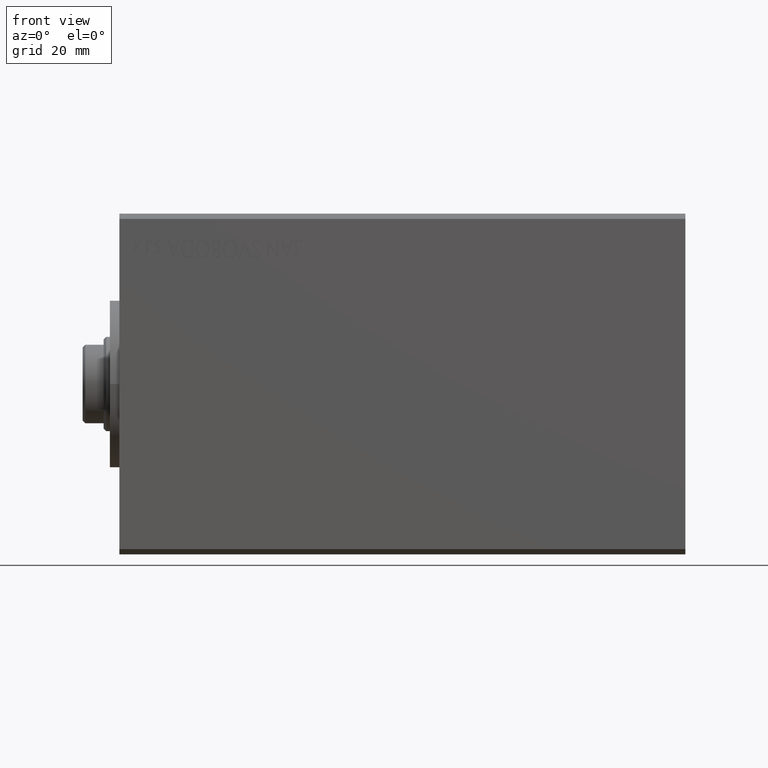
[diagram: clean part render]
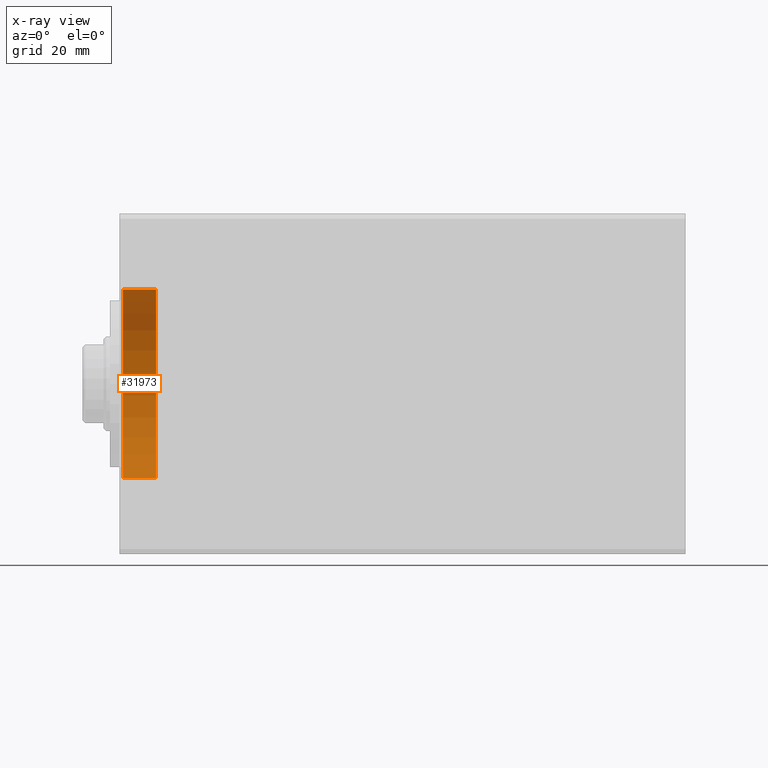
[diagram: x-ray — body ghosted, one internal face saturated and labeled with its STEP entity id]
A machine part, front view, then the same camera in x-ray: the body is ghosted and one INTERNAL B-rep face — a face not visible from any outside direction — is saturated and labeled: STEP entity #31973.
In plain terms, the highlighted cylindrical surface (partial cylindrical patch) has radius 18 mm, axis along (-1, -0, -0).
Its self-contained STEP definition (entity closure, byte-faithful):
#972 = DIRECTION ( 'NONE',  ( -1.000000000000000000, -0.000000000000000000, -0.000000000000000000 ) ) ;
#1537 = CIRCLE ( 'NONE', #29329, 18.00000000000000000 ) ;
#2819 = DIRECTION ( 'NONE',  ( 0.000000000000000000, 0.000000000000000000, 1.000000000000000000 ) ) ;
#3645 = ORIENTED_EDGE ( 'NONE', *, *, #8419, .T. ) ;
#4998 = CARTESIAN_POINT ( 'NONE',  ( 0.6999999999999749756, 0.000000000000000000, 18.00000000000000000 ) ) ;
#6221 = VERTEX_POINT ( 'NONE', #4998 ) ;
#7685 = CARTESIAN_POINT ( 'NONE',  ( 7.000000000000000000, 0.000000000000000000, 18.00000000000000000 ) ) ;
#7875 = AXIS2_PLACEMENT_3D ( 'NONE', #9754, #33154, #2819 ) ;
#8419 = EDGE_CURVE ( 'NONE', #6221, #35295, #11509, .T. ) ;
#9204 = VECTOR ( 'NONE', #21310, 1000.000000000000000 ) ;
#9470 = ORIENTED_EDGE ( 'NONE', *, *, #9980, .T. ) ;
#9754 = CARTESIAN_POINT ( 'NONE',  ( 7.000000000000000000, 0.000000000000000000, 0.000000000000000000 ) ) ;
#9970 = CYLINDRICAL_SURFACE ( 'NONE', #7875, 18.00000000000000000 ) ;
#9980 = EDGE_CURVE ( 'NONE', #19070, #6221, #38221, .T. ) ;
#11419 = DIRECTION ( 'NONE',  ( 0.000000000000000000, 0.000000000000000000, 1.000000000000000000 ) ) ;
#11509 = CIRCLE ( 'NONE', #30005, 18.00000000000000000 ) ;
#11950 = CARTESIAN_POINT ( 'NONE',  ( 7.000000000000000000, 2.204364238465235428E-15, -18.00000000000000000 ) ) ;
#16532 = DIRECTION ( 'NONE',  ( -1.000000000000000000, 0.000000000000000000, 0.000000000000000000 ) ) ;
#18852 = VERTEX_POINT ( 'NONE', #11950 ) ;
#19070 = VERTEX_POINT ( 'NONE', #32388 ) ;
#21310 = DIRECTION ( 'NONE',  ( -1.000000000000000000, -0.000000000000000000, -0.000000000000000000 ) ) ;
#24645 = CARTESIAN_POINT ( 'NONE',  ( 0.6999999999999749756, 2.204364238465235428E-15, -18.00000000000000000 ) ) ;
#26466 = VECTOR ( 'NONE', #972, 1000.000000000000000 ) ;
#28329 = DIRECTION ( 'NONE',  ( -1.000000000000000000, 0.000000000000000000, 0.000000000000000000 ) ) ;
#28767 = CARTESIAN_POINT ( 'NONE',  ( 7.000000000000000000, 0.000000000000000000, 0.000000000000000000 ) ) ;
#29329 = AXIS2_PLACEMENT_3D ( 'NONE', #28767, #28329, #11419 ) ;
#29785 = EDGE_CURVE ( 'NONE', #18852, #35295, #41591, .T. ) ;
#30005 = AXIS2_PLACEMENT_3D ( 'NONE', #37464, #16532, #43481 ) ;
#30399 = ORIENTED_EDGE ( 'NONE', *, *, #36858, .F. ) ;
#31973 = ADVANCED_FACE ( 'NONE', ( #33376 ), #9970, .F. ) ;
#32388 = CARTESIAN_POINT ( 'NONE',  ( 7.000000000000000000, 0.000000000000000000, 18.00000000000000000 ) ) ;
#33154 = DIRECTION ( 'NONE',  ( -1.000000000000000000, -0.000000000000000000, -0.000000000000000000 ) ) ;
#33376 = FACE_OUTER_BOUND ( 'NONE', #36237, .T. ) ;
#35295 = VERTEX_POINT ( 'NONE', #24645 ) ;
#36237 = EDGE_LOOP ( 'NONE', ( #39997, #30399, #9470, #3645 ) ) ;
#36858 = EDGE_CURVE ( 'NONE', #19070, #18852, #1537, .T. ) ;
#37464 = CARTESIAN_POINT ( 'NONE',  ( 0.6999999999999749756, 0.000000000000000000, 0.000000000000000000 ) ) ;
#38221 = LINE ( 'NONE', #7685, #26466 ) ;
#38461 = CARTESIAN_POINT ( 'NONE',  ( 7.000000000000000000, 2.204364238465235428E-15, -18.00000000000000000 ) ) ;
#39997 = ORIENTED_EDGE ( 'NONE', *, *, #29785, .F. ) ;
#41591 = LINE ( 'NONE', #38461, #9204 ) ;
#43481 = DIRECTION ( 'NONE',  ( 0.000000000000000000, 0.000000000000000000, -1.000000000000000000 ) ) ;